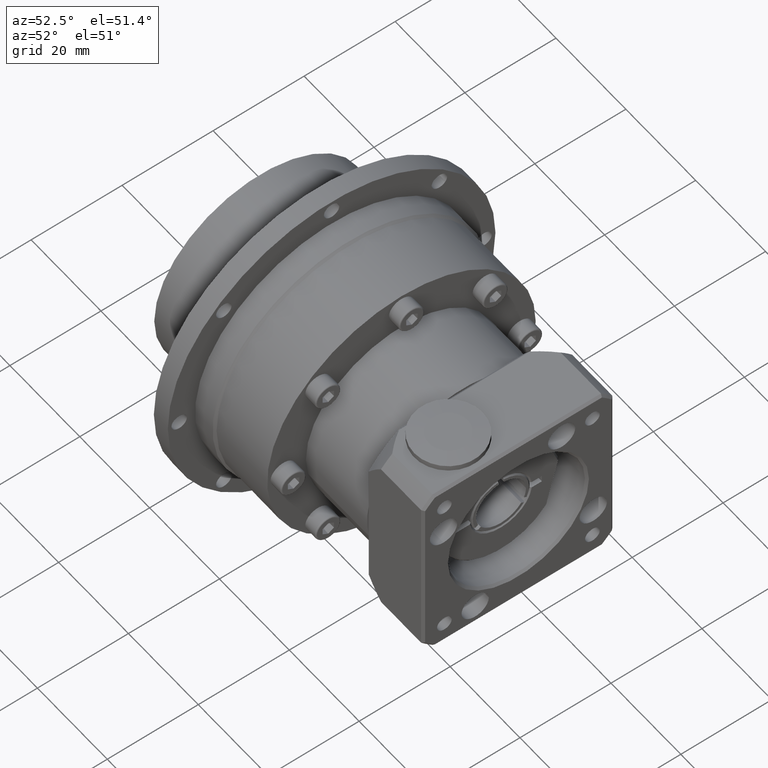
[diagram: clean part render]
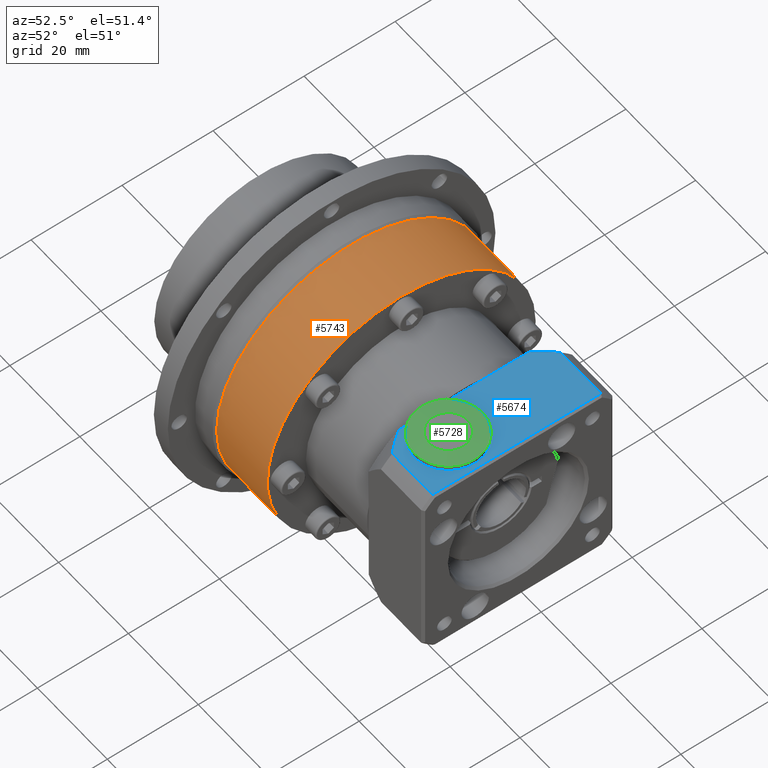
[diagram: same view with three faces highlighted in distinct colors, each labeled with its STEP entity id]
A machine part, auxiliary view with three faces highlighted in distinct colors.
Their STEP definitions:

[orange] entity #5743 — the highlighted cylindrical surface (bore or boss wall) has radius 29.5 mm, axis along (1, -0, 0).
#1066=FACE_BOUND('',#1898,.T.);
#1387=FACE_OUTER_BOUND('',#1897,.T.);
#1897=EDGE_LOOP('',(#4398));
#1898=EDGE_LOOP('',(#4399));
#2413=CIRCLE('',#6335,29.5);
#2414=CIRCLE('',#6336,29.5);
#2819=VERTEX_POINT('',#9337);
#2820=VERTEX_POINT('',#9339);
#3419=EDGE_CURVE('',#2819,#2819,#2413,.T.);
#3420=EDGE_CURVE('',#2820,#2820,#2414,.T.);
#4398=ORIENTED_EDGE('',*,*,#3419,.F.);
#4399=ORIENTED_EDGE('',*,*,#3420,.T.);
#5221=CYLINDRICAL_SURFACE('',#6334,29.5);
#5743=ADVANCED_FACE('',(#1387,#1066),#5221,.T.);
#6334=AXIS2_PLACEMENT_3D('',#9336,#7507,#7508);
#6335=AXIS2_PLACEMENT_3D('',#9338,#7509,#7510);
#6336=AXIS2_PLACEMENT_3D('',#9340,#7511,#7512);
#7507=DIRECTION('center_axis',(1.,-3.05311331771913E-16,3.13800764382487E-15));
#7508=DIRECTION('ref_axis',(3.05311331772049E-16,1.,-4.35335528309626E-14));
#7509=DIRECTION('center_axis',(1.,-6.5903138305221E-16,3.93684906774911E-15));
#7510=DIRECTION('ref_axis',(3.93684906774908E-15,-4.3549699103267E-14,-1.));
#7511=DIRECTION('center_axis',(1.,-3.05311331771913E-16,3.13800764382487E-15));
#7512=DIRECTION('ref_axis',(3.13800764382485E-15,-4.35335528309626E-14,
-1.));
#9336=CARTESIAN_POINT('Origin',(-0.345163103466852,-49.1307567443876,52.8867726493691));
#9337=CARTESIAN_POINT('',(11.904836896533,-49.1307567443862,82.3867726493692));
#9338=CARTESIAN_POINT('Origin',(11.9048368965332,-49.1307567443875,52.8867726493692));
#9339=CARTESIAN_POINT('',(-2.59516310346685,-19.6307567443876,52.8867726493679));
#9340=CARTESIAN_POINT('Origin',(-2.59516310346685,-49.1307567443876,52.8867726493691));

[blue] entity #5674 — the highlighted planar face has unit normal (-0, 0, 1).
#219=LINE('',#8964,#468);
#220=LINE('',#8968,#469);
#221=LINE('',#8970,#470);
#222=LINE('',#8972,#471);
#223=LINE('',#8975,#472);
#468=VECTOR('',#7181,2.09981307479312);
#469=VECTOR('',#7184,11.5014761628236);
#470=VECTOR('',#7185,37.0405183549043);
#471=VECTOR('',#7186,11.5014761628236);
#472=VECTOR('',#7189,19.0998130747932);
#830=PLANE('',#6182);
#1318=FACE_OUTER_BOUND('',#1782,.T.);
#1782=EDGE_LOOP('',(#4147,#4148,#4149,#4150,#4151,#4152,#4153,#4154));
#2330=CIRCLE('',#6183,7.5);
#2331=CIRCLE('',#6184,25.740404037233);
#2332=CIRCLE('',#6185,25.740404037233);
#2731=VERTEX_POINT('',#8960);
#2732=VERTEX_POINT('',#8961);
#2733=VERTEX_POINT('',#8963);
#2734=VERTEX_POINT('',#8965);
#2735=VERTEX_POINT('',#8967);
#2736=VERTEX_POINT('',#8969);
#2737=VERTEX_POINT('',#8971);
#2738=VERTEX_POINT('',#8973);
#3292=EDGE_CURVE('',#2731,#2732,#2330,.T.);
#3293=EDGE_CURVE('',#2733,#2732,#219,.T.);
#3294=EDGE_CURVE('',#2733,#2734,#2331,.T.);
#3295=EDGE_CURVE('',#2734,#2735,#220,.T.);
#3296=EDGE_CURVE('',#2736,#2735,#221,.T.);
#3297=EDGE_CURVE('',#2736,#2737,#222,.T.);
#3298=EDGE_CURVE('',#2737,#2738,#2332,.T.);
#3299=EDGE_CURVE('',#2731,#2738,#223,.T.);
#4147=ORIENTED_EDGE('',*,*,#3292,.T.);
#4148=ORIENTED_EDGE('',*,*,#3293,.F.);
#4149=ORIENTED_EDGE('',*,*,#3294,.T.);
#4150=ORIENTED_EDGE('',*,*,#3295,.T.);
#4151=ORIENTED_EDGE('',*,*,#3296,.F.);
#4152=ORIENTED_EDGE('',*,*,#3297,.T.);
#4153=ORIENTED_EDGE('',*,*,#3298,.T.);
#4154=ORIENTED_EDGE('',*,*,#3299,.F.);
#5674=ADVANCED_FACE('',(#1318),#830,.T.);
#6182=AXIS2_PLACEMENT_3D('',#8959,#7177,#7178);
#6183=AXIS2_PLACEMENT_3D('',#8962,#7179,#7180);
#6184=AXIS2_PLACEMENT_3D('',#8966,#7182,#7183);
#6185=AXIS2_PLACEMENT_3D('',#8974,#7187,#7188);
#7177=DIRECTION('center_axis',(-2.01650819535831E-15,4.29100182329805E-14,
1.));
#7178=DIRECTION('ref_axis',(1.4210854715202E-15,1.,-4.2632564145606E-14));
#7179=DIRECTION('center_axis',(1.98132647686618E-15,-4.33541074428306E-14,
-1.));
#7180=DIRECTION('ref_axis',(-1.,4.46476463622196E-14,-1.98132647686812E-15));
#7181=DIRECTION('',(1.36047229862591E-15,1.,-4.29100182329805E-14));
#7182=DIRECTION('center_axis',(-2.01650819535831E-15,4.29100182329805E-14,
1.));
#7183=DIRECTION('ref_axis',(1.36047229862591E-15,1.,-4.29100182329805E-14));
#7184=DIRECTION('',(1.,-1.36047229862582E-15,2.01650819535837E-15));
#7185=DIRECTION('',(-1.36047229862591E-15,-1.,4.29100182329805E-14));
#7186=DIRECTION('',(-1.,1.36047229862582E-15,-2.01650819535837E-15));
#7187=DIRECTION('center_axis',(-2.01650819535831E-15,4.29100182329805E-14,
1.));
#7188=DIRECTION('ref_axis',(1.36047229862591E-15,1.,-4.29100182329805E-14));
#7189=DIRECTION('',(1.36047229862591E-15,1.,-4.29100182329805E-14));
#8959=CARTESIAN_POINT('Origin',(45.4048368965331,-70.1307567443866,73.8867726493702));
#8960=CARTESIAN_POINT('',(29.9048368965331,-53.8890993576128,73.8867726493695));
#8961=CARTESIAN_POINT('',(29.9048368965331,-61.3724141311605,73.8867726493698));
#8962=CARTESIAN_POINT('Origin',(36.4048368965331,-57.6307567443866,73.8867726493696));
#8963=CARTESIAN_POINT('',(29.9048368965331,-63.4722272059536,73.8867726493699));
#8964=CARTESIAN_POINT('',(29.9048368965331,-59.6307567443866,73.8867726493697));
#8965=CARTESIAN_POINT('',(33.4033607337095,-67.6510159218387,73.8867726493701));
#8966=CARTESIAN_POINT('Origin',(51.2798368965331,-49.1307567443866,73.8867726493693));
#8967=CARTESIAN_POINT('',(44.9048368965331,-67.6510159218387,73.8867726493701));
#8968=CARTESIAN_POINT('',(45.4048368965331,-67.6510159218387,73.8867726493701));
#8969=CARTESIAN_POINT('',(44.9048368965331,-30.6104975669345,73.8867726493685));
#8970=CARTESIAN_POINT('',(44.9048368965331,-59.6307567443866,73.8867726493698));
#8971=CARTESIAN_POINT('',(33.4033607337095,-30.6104975669345,73.8867726493685));
#8972=CARTESIAN_POINT('',(45.4048368965331,-30.6104975669345,73.8867726493685));
#8973=CARTESIAN_POINT('',(29.9048368965331,-34.7892862828195,73.8867726493687));
#8974=CARTESIAN_POINT('Origin',(51.2798368965331,-49.1307567443866,73.8867726493693));
#8975=CARTESIAN_POINT('',(29.9048368965331,-59.6307567443866,73.8867726493697));

[green] entity #5728 — the highlighted conical surface has half-angle 84.726 deg.
#668=CONICAL_SURFACE('',#6297,5.875,84.7261040426483);
#1048=FACE_BOUND('',#1865,.T.);
#1372=FACE_OUTER_BOUND('',#1864,.T.);
#1864=EDGE_LOOP('',(#4360));
#1865=EDGE_LOOP('',(#4361));
#2390=CIRCLE('',#6296,4.25);
#2391=CIRCLE('',#6298,7.5);
#2800=VERTEX_POINT('',#9279);
#2801=VERTEX_POINT('',#9282);
#3396=EDGE_CURVE('',#2800,#2800,#2390,.T.);
#3397=EDGE_CURVE('',#2801,#2801,#2391,.T.);
#4360=ORIENTED_EDGE('',*,*,#3396,.T.);
#4361=ORIENTED_EDGE('',*,*,#3397,.F.);
#5728=ADVANCED_FACE('',(#1372,#1048),#668,.T.);
#6296=AXIS2_PLACEMENT_3D('',#9280,#7431,#7432);
#6297=AXIS2_PLACEMENT_3D('',#9281,#7433,#7434);
#6298=AXIS2_PLACEMENT_3D('',#9283,#7435,#7436);
#7431=DIRECTION('center_axis',(1.98132647686618E-15,-4.33541074428306E-14,
-1.));
#7432=DIRECTION('ref_axis',(-1.,4.46476463622196E-14,-1.98132647686811E-15));
#7433=DIRECTION('center_axis',(1.98132647686618E-15,-4.33541074428306E-14,
-1.));
#7434=DIRECTION('ref_axis',(4.46476463622197E-14,1.,-4.33490356434453E-14));
#7435=DIRECTION('center_axis',(1.98132647686618E-15,-4.33541074428306E-14,
-1.));
#7436=DIRECTION('ref_axis',(-1.,4.46476463622196E-14,-1.98132647686812E-15));
#9279=CARTESIAN_POINT('',(36.4048368965333,-53.3807567443866,75.3867726493694));
#9280=CARTESIAN_POINT('Origin',(36.4048368965331,-57.6307567443866,75.3867726493696));
#9281=CARTESIAN_POINT('Origin',(36.4048368965331,-57.6307567443866,75.2367726493696));
#9282=CARTESIAN_POINT('',(36.4048368965334,-50.1307567443866,75.0867726493692));
#9283=CARTESIAN_POINT('Origin',(36.4048368965331,-57.6307567443866,75.0867726493696));